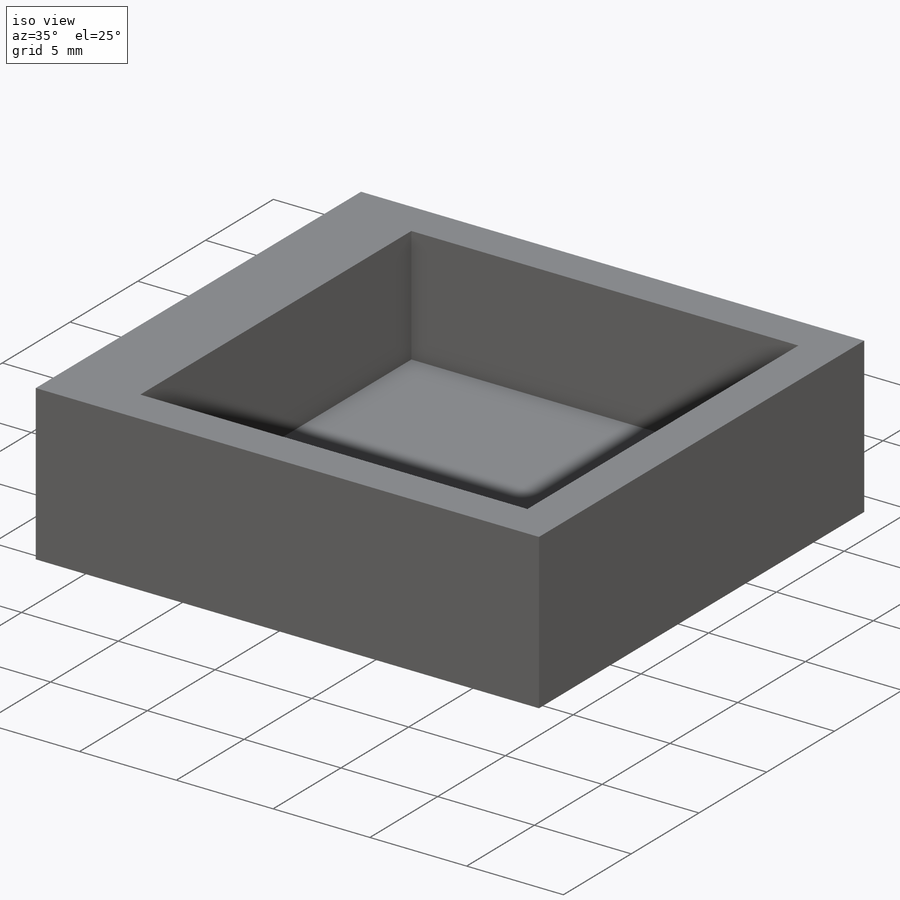
[diagram: iso view]
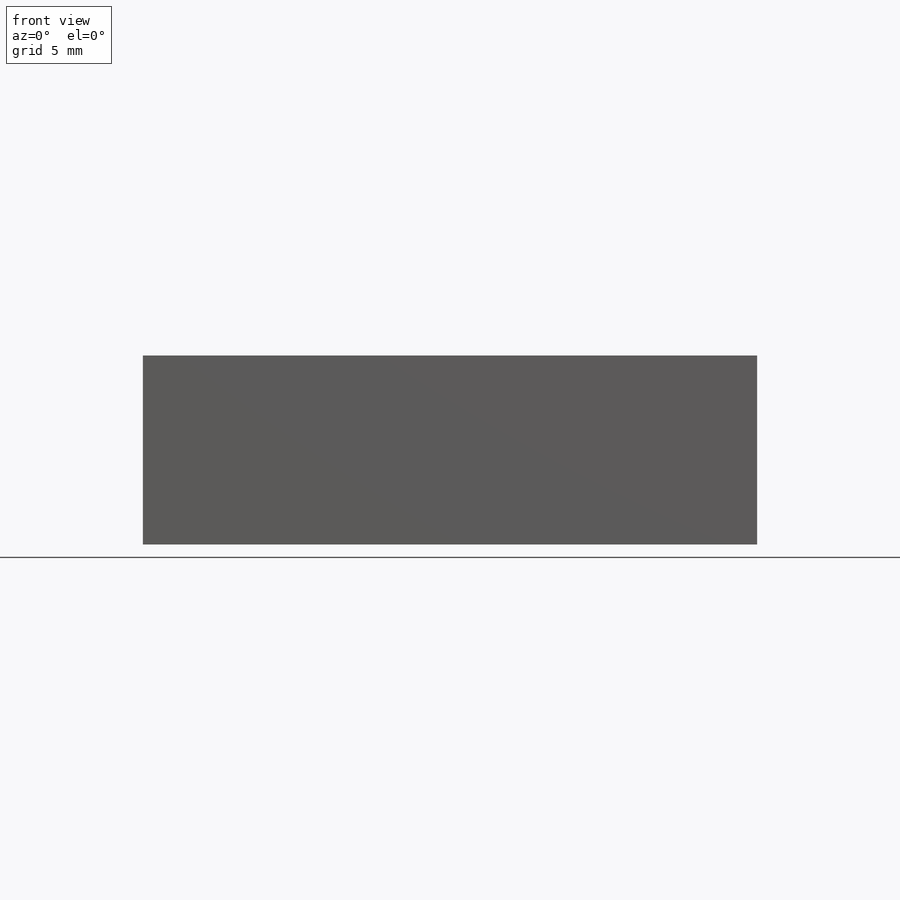
[diagram: front view]
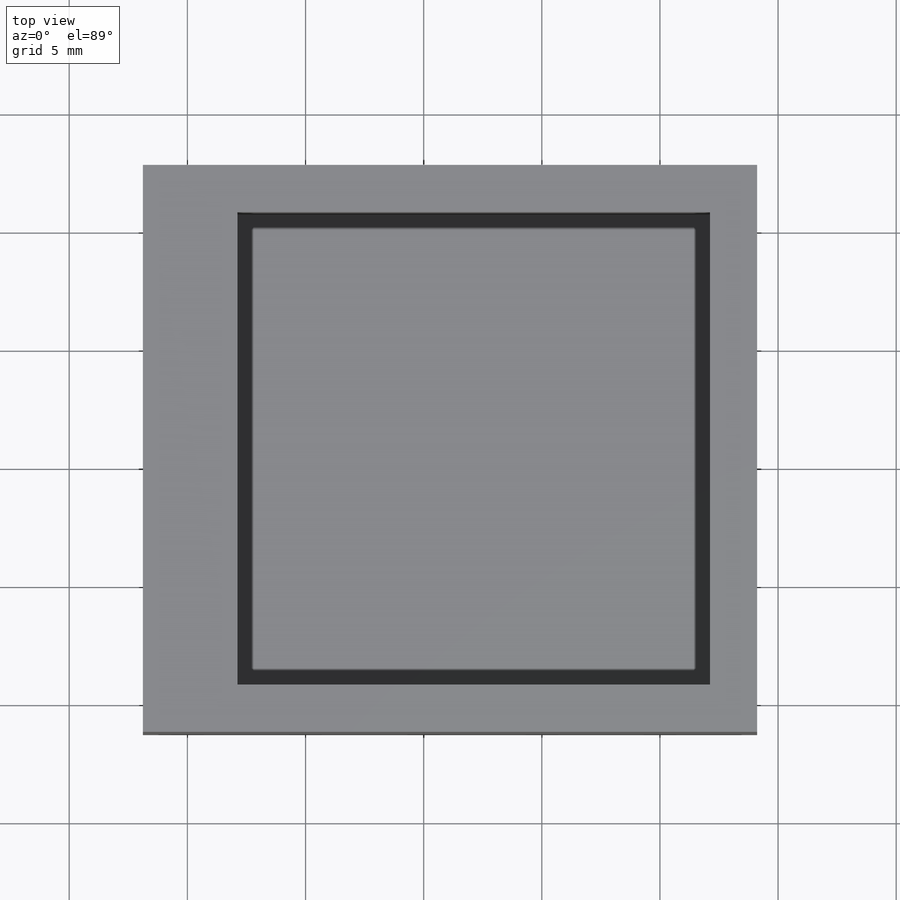
[diagram: top view]
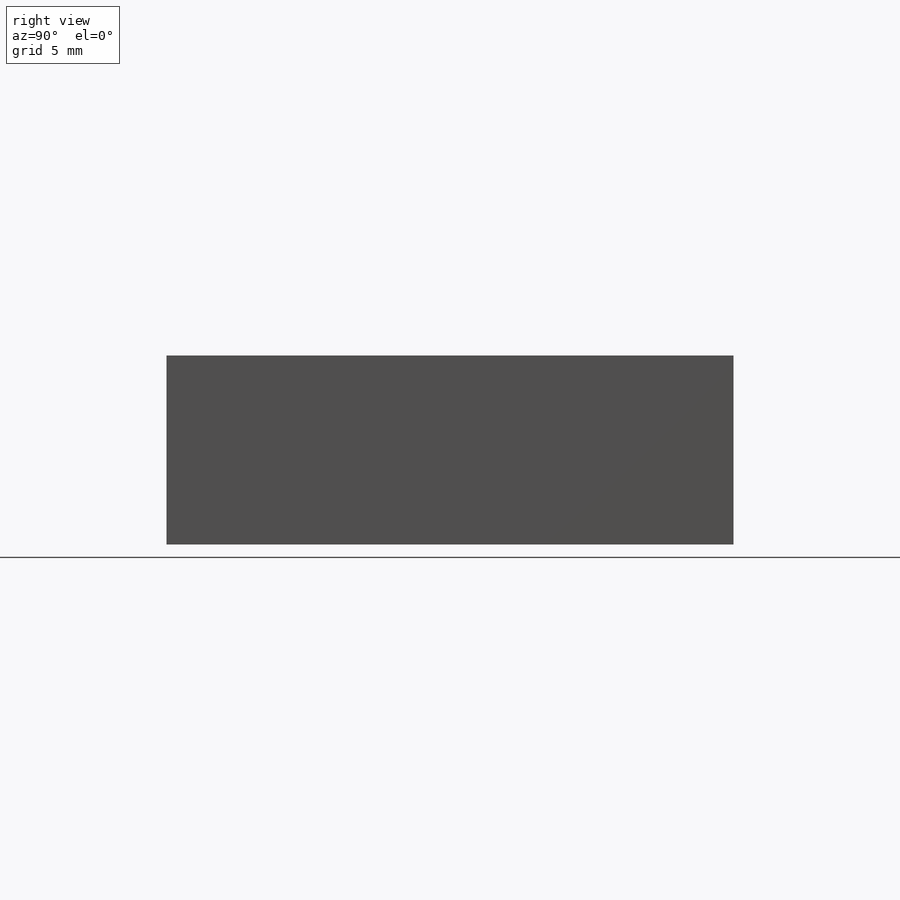
[diagram: right view]
SOLIDWORKS PART (.sldprt)
format: sldprt  version: not decoded by parser v0  size: 294,912 bytes
history: native  units: mm
features: sketch x7, extrude x6, plane x3, material x1, cut_extrude x1 (+10 scaffold rows collapsed)
feature tree (28):
  scaffold x10  (default folders/planes/origin — collapsed)
  material  "Материал <не указан>"
  plane  "Спереди"
  plane  "Сверху"
  plane  "Справа"
  sketch  "Эскиз1"  dims[c1.D1=20.0mm c1.D2=20.0mm c2.D1=2.0mm]
  extrude  "Бобышка-Вытянуть1"  Depth=2mm
  extrude  "Бобышка-Вытянуть2"  [1 undecoded]
  sketch  "Эскиз1<4>"  dims[D1=6.0mm]
  sketch  "Эскиз6"  dims[D1=2.8mm]
  extrude  "Бобышка-Вытянуть5"  Depth=0.2mm
  sketch  "Эскиз5"  dims[D1=3.3mm]
  extrude  "Бобышка-Вытянуть6"  Depth=0.2mm
  sketch  "Эскиз7"  dims[D1=7.8mm]
  extrude  "Бобышка-Вытянуть7"  [1 undecoded]
  sketch  "Эскиз3"  dims[D1=2.1mm]
  extrude  "Бобышка-Вытянуть3"  [1 undecoded]
  sketch  "Эскиз8"
  cut_extrude  "Вырез-Вытянуть1"  Depth=3mm
decode coverage: 10 of 14 modeling features carry decoded parameters
note: 3 parameter values undecoded
summary: no parameter record found for 3 features
note: suppression state not decoded; provenance and decode notes live in map.json
